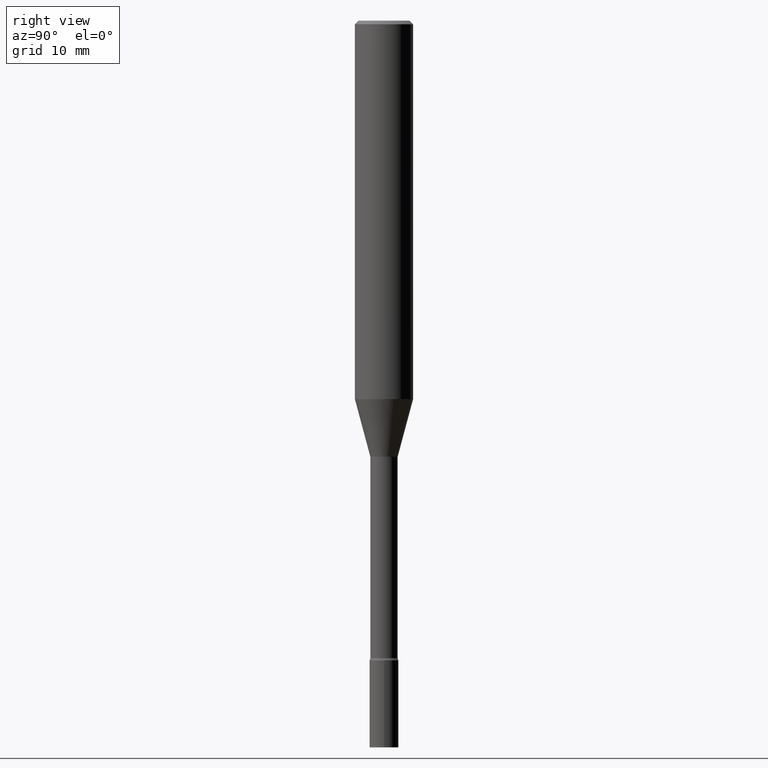
[diagram: clean part render]
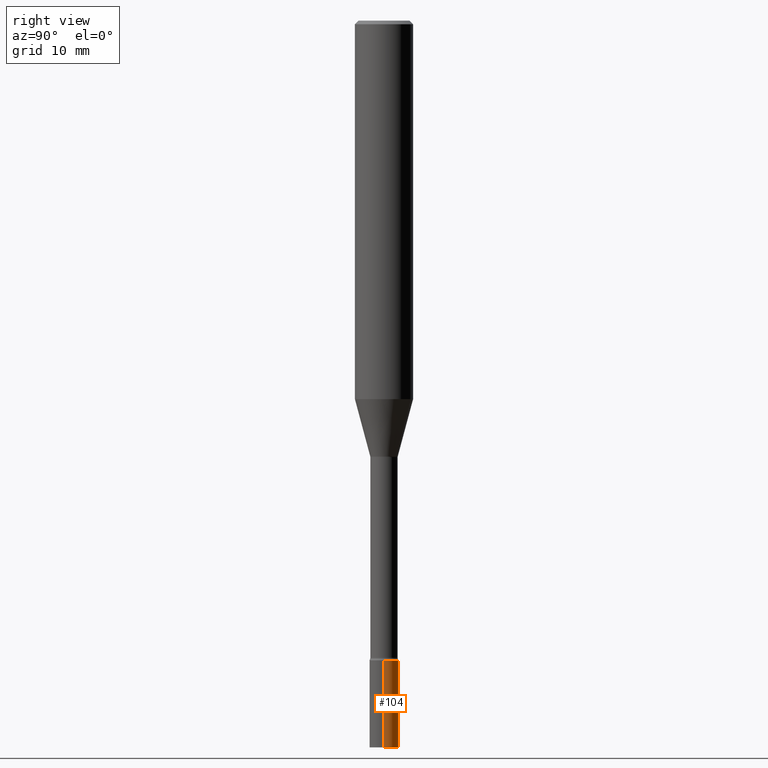
[diagram: same view with one face highlighted and labeled with its STEP entity id]
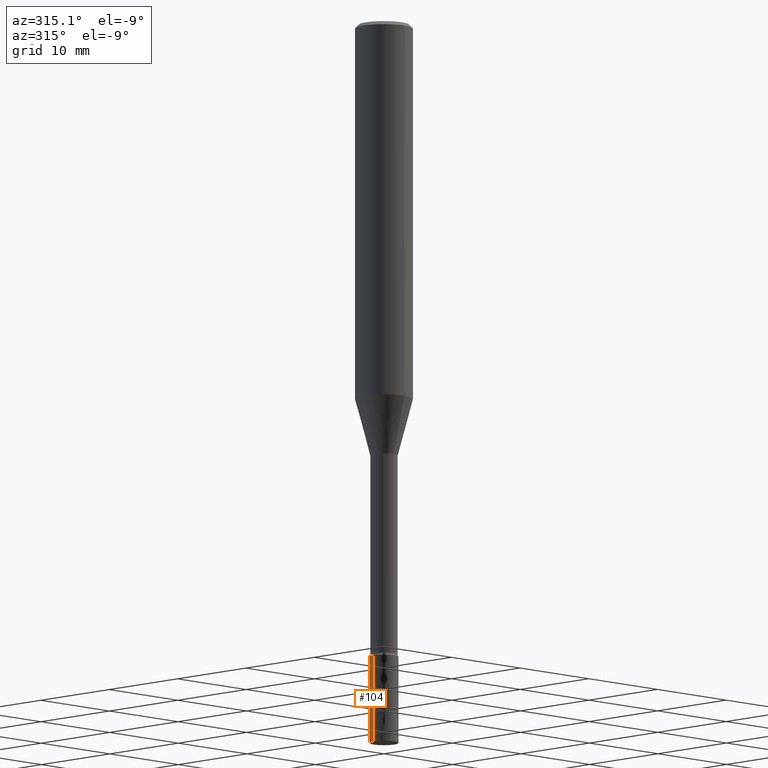
[diagram: same view with one face highlighted and labeled with its STEP entity id]
A machine part, right view. The second image highlights one B-rep face of the part: STEP entity #104.
A second angle (auxiliary view) of the same face is appended — the face is thin or edge-on in the first view.
In plain terms, the highlighted cylindrical surface (edge-blend (fillet) strip) has radius 1.4999 mm, axis along (-0, 0, 1).
Its self-contained STEP definition (entity closure, byte-faithful):
#4 = VECTOR ( 'NONE', #37, 39.37007874015748143 ) ;
#20 = VERTEX_POINT ( 'NONE', #438 ) ;
#29 = AXIS2_PLACEMENT_3D ( 'NONE', #195, #442, #405 ) ;
#31 = EDGE_CURVE ( 'NONE', #20, #212, #403, .T. ) ;
#37 = DIRECTION ( 'NONE',  ( -2.445468806185136877E-29, 3.491481338843145188E-15, 1.000000000000000000 ) ) ;
#103 = CARTESIAN_POINT ( 'NONE',  ( 0.05904999999999999832, -4.123439461173740327E-16, 2.879382386107500220E-30 ) ) ;
#104 = ADVANCED_FACE ( 'NONE', ( #161 ), #481, .T. ) ;
#129 = CARTESIAN_POINT ( 'NONE',  ( 0.05904999999999999832, -9.484958205101287110E-15, -2.598499999999999588 ) ) ;
#130 = DIRECTION ( 'NONE',  ( -2.445468806185136877E-29, 3.491481338843145188E-15, 1.000000000000000000 ) ) ;
#131 = ORIENTED_EDGE ( 'NONE', *, *, #325, .T. ) ;
#151 = VERTEX_POINT ( 'NONE', #520 ) ;
#161 = FACE_OUTER_BOUND ( 'NONE', #204, .T. ) ;
#170 = EDGE_CURVE ( 'NONE', #207, #212, #199, .T. ) ;
#195 = CARTESIAN_POINT ( 'NONE',  ( 6.354550692872077420E-29, -9.072614258983912979E-15, -2.598499999999999588 ) ) ;
#198 = CARTESIAN_POINT ( 'NONE',  ( -0.05904999999999999832, 4.195754854663391478E-16, -2.904631170795521892E-30 ) ) ;
#199 = CIRCLE ( 'NONE', #29, 0.05904999999999999832 ) ;
#200 = DIRECTION ( 'NONE',  ( -2.445468806185136597E-29, 3.491481338843145583E-15, 1.000000000000000000 ) ) ;
#204 = EDGE_LOOP ( 'NONE', ( #131, #383, #301, #459 ) ) ;
#207 = VERTEX_POINT ( 'NONE', #129 ) ;
#212 = VERTEX_POINT ( 'NONE', #446 ) ;
#214 = EDGE_CURVE ( 'NONE', #151, #207, #372, .T. ) ;
#227 = CIRCLE ( 'NONE', #379, 0.05904999999999999832 ) ;
#252 = AXIS2_PLACEMENT_3D ( 'NONE', #277, #200, #287 ) ;
#277 = CARTESIAN_POINT ( 'NONE',  ( 0.000000000000000000, 0.000000000000000000, 0.000000000000000000 ) ) ;
#287 = DIRECTION ( 'NONE',  ( 1.000000000000000000, -6.982962677686266711E-15, 4.876176775795936353E-29 ) ) ;
#293 = CARTESIAN_POINT ( 'NONE',  ( 7.220980290903470182E-29, -1.030964609733603853E-14, -2.952799999999999869 ) ) ;
#301 = ORIENTED_EDGE ( 'NONE', *, *, #170, .F. ) ;
#325 = EDGE_CURVE ( 'NONE', #151, #20, #227, .T. ) ;
#338 = DIRECTION ( 'NONE',  ( -2.445468806185136597E-29, 3.491481338843145583E-15, 1.000000000000000000 ) ) ;
#372 = LINE ( 'NONE', #103, #477 ) ;
#379 = AXIS2_PLACEMENT_3D ( 'NONE', #293, #338, #494 ) ;
#383 = ORIENTED_EDGE ( 'NONE', *, *, #31, .T. ) ;
#403 = LINE ( 'NONE', #198, #4 ) ;
#405 = DIRECTION ( 'NONE',  ( 1.000000000000000000, -6.982962677686273021E-15, 0.000000000000000000 ) ) ;
#438 = CARTESIAN_POINT ( 'NONE',  ( -0.05904999999999999832, -9.271554692693635471E-15, -2.952799999999999869 ) ) ;
#442 = DIRECTION ( 'NONE',  ( -2.445468806185136597E-29, 3.491481338843145583E-15, 1.000000000000000000 ) ) ;
#446 = CARTESIAN_POINT ( 'NONE',  ( -0.05904999999999999832, -9.271554692693635471E-15, -2.598499999999999588 ) ) ;
#459 = ORIENTED_EDGE ( 'NONE', *, *, #214, .F. ) ;
#477 = VECTOR ( 'NONE', #130, 39.37007874015748143 ) ;
#481 = CYLINDRICAL_SURFACE ( 'NONE', #252, 0.05904999999999999832 ) ;
#494 = DIRECTION ( 'NONE',  ( 1.000000000000000000, -6.982962677686273021E-15, 0.000000000000000000 ) ) ;
#520 = CARTESIAN_POINT ( 'NONE',  ( 0.05904999999999999832, -1.072199004345341266E-14, -2.952799999999999869 ) ) ;